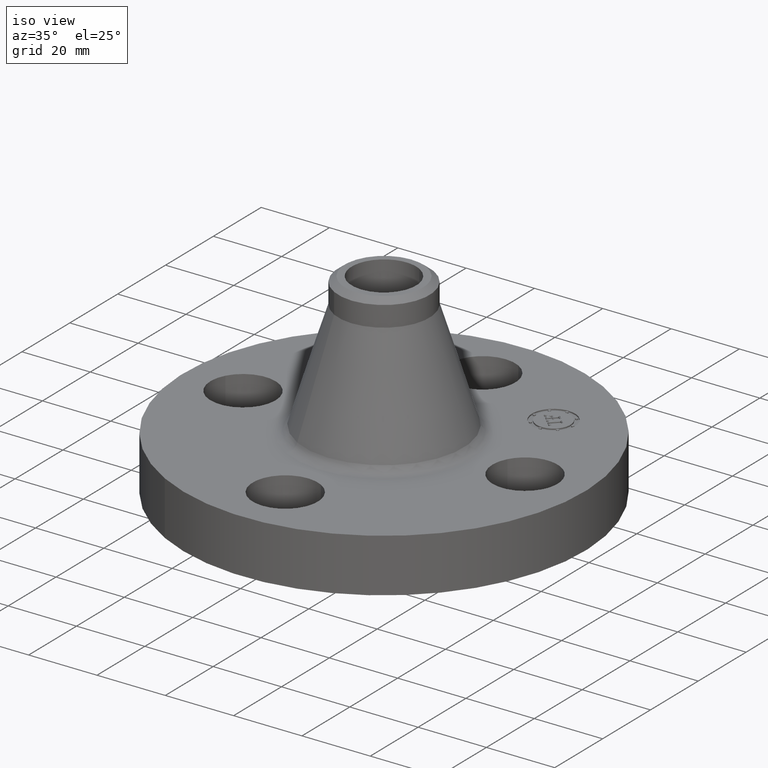
[diagram: clean part render]
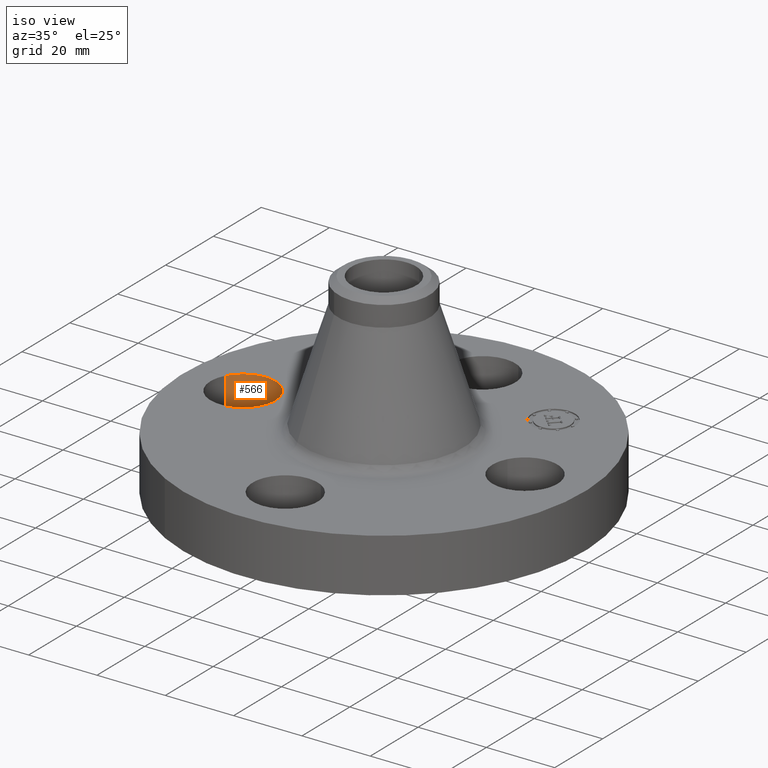
[diagram: same view with one face highlighted and labeled with its STEP entity id]
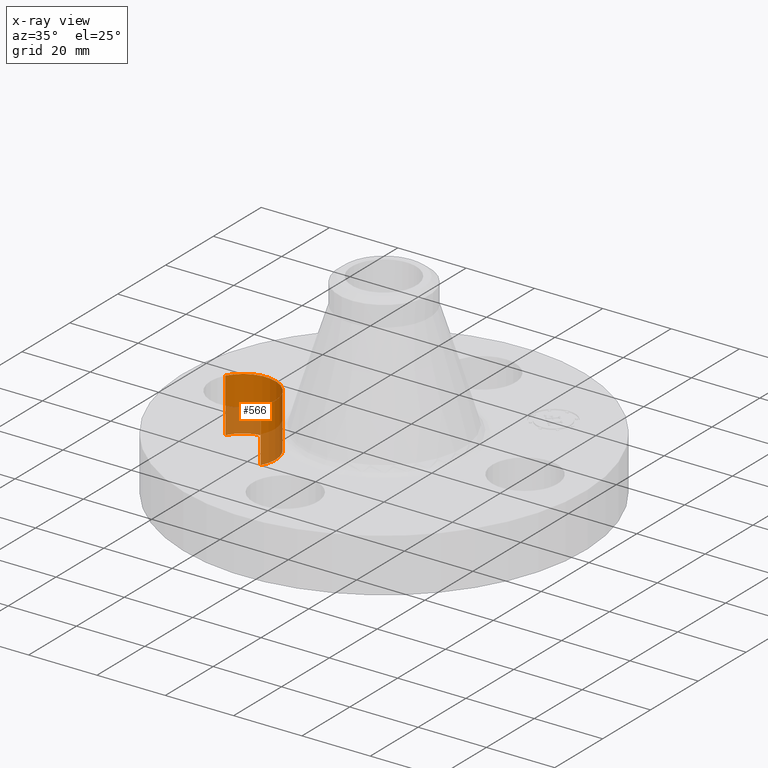
[diagram: x-ray of the same camera — body ghosted, the highlighted face saturated]
A machine part, iso view. The second image highlights one B-rep face of the part: STEP entity #566.
The next image is the same camera in x-ray: the body ghosted, the highlighted face saturated — about 42% of this face is hidden behind the body in this view.
In plain terms, the highlighted cylindrical surface (partial cylindrical patch) has radius 9.525 mm, axis along (0, 0, -1).
Its self-contained STEP definition (entity closure, byte-faithful):
#198=AXIS2_PLACEMENT_3D('Circle Axis2P3D',#196,#197,$) ;
#296=AXIS2_PLACEMENT_3D('Circle Axis2P3D',#294,#295,$) ;
#558=AXIS2_PLACEMENT_3D('Cylinder Axis2P3D',#555,#556,#557) ;
#191=CARTESIAN_POINT('Vertex',(-1.29590653932,-0.179784576962,0.)) ;
#193=CARTESIAN_POINT('Vertex',(-1.95409346071,0.179784576985,0.)) ;
#196=CARTESIAN_POINT('Axis2P3D Location',(-1.62500000001,1.13252539455E-011,0.)) ;
#294=CARTESIAN_POINT('Axis2P3D Location',(-1.62500000001,-1.287956618E-011,0.620000000002)) ;
#298=CARTESIAN_POINT('Vertex',(-1.95409346071,0.17978457696,0.620000000002)) ;
#300=CARTESIAN_POINT('Vertex',(-1.2959065393,-0.179784576978,0.619999999987)) ;
#531=CARTESIAN_POINT('Line Origine',(-1.2959065393,-0.179784576978,0.310000000001)) ;
#536=CARTESIAN_POINT('Line Origine',(-1.95409346072,0.179784576978,0.310000000001)) ;
#555=CARTESIAN_POINT('Axis2P3D Location',(-1.62500000001,-1.99005104862E-016,0.616062992128)) ;
#197=DIRECTION('Axis2P3D Direction',(0.,0.,-0.0393700787402)) ;
#295=DIRECTION('Axis2P3D Direction',(0.,0.,-0.0393700787402)) ;
#532=DIRECTION('Vector Direction',(0.,0.,-0.0393700787402)) ;
#537=DIRECTION('Vector Direction',(0.,0.,-0.0393700787402)) ;
#556=DIRECTION('Axis2P3D Direction',(0.,0.,-0.0393700787402)) ;
#557=DIRECTION('Axis2P3D XDirection',(-0.0345504945626,0.0188750212049,0.)) ;
#533=VECTOR('Line Direction',#532,0.0393700787402) ;
#538=VECTOR('Line Direction',#537,0.0393700787402) ;
#561=ORIENTED_EDGE('',*,*,#540,.F.) ;
#562=ORIENTED_EDGE('',*,*,#200,.T.) ;
#563=ORIENTED_EDGE('',*,*,#535,.T.) ;
#564=ORIENTED_EDGE('',*,*,#302,.F.) ;
#566=ADVANCED_FACE('PartBody',(#565),#559,.F.) ;
#199=CIRCLE('generated circle',#198,0.374999999988) ;
#297=CIRCLE('generated circle',#296,0.374999999988) ;
#559=CYLINDRICAL_SURFACE('generated cylinder',#558,0.375000000002) ;
#200=EDGE_CURVE('',#194,#192,#199,.T.) ;
#302=EDGE_CURVE('',#299,#301,#297,.T.) ;
#535=EDGE_CURVE('',#192,#301,#534,.F.) ;
#540=EDGE_CURVE('',#194,#299,#539,.F.) ;
#560=EDGE_LOOP('',(#561,#562,#563,#564)) ;
#565=FACE_OUTER_BOUND('',#560,.T.) ;
#534=LINE('Line',#531,#533) ;
#539=LINE('Line',#536,#538) ;
#192=VERTEX_POINT('',#191) ;
#194=VERTEX_POINT('',#193) ;
#299=VERTEX_POINT('',#298) ;
#301=VERTEX_POINT('',#300) ;